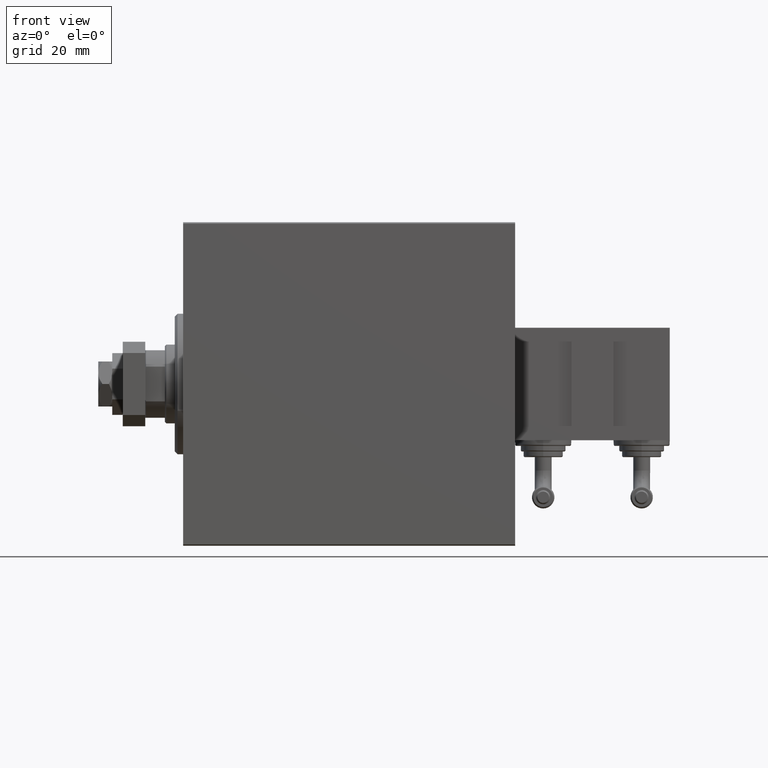
[diagram: clean part render]
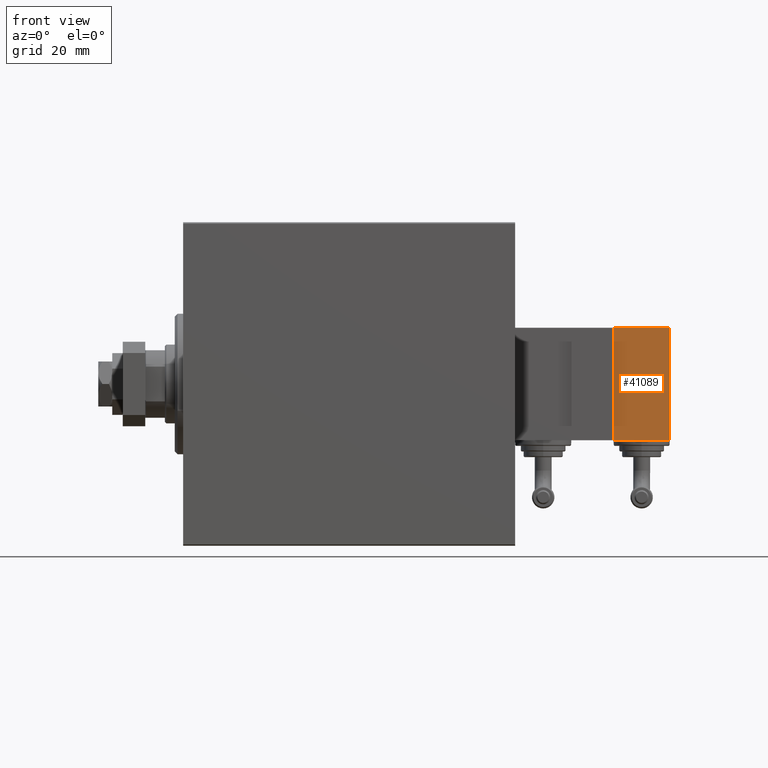
[diagram: same view with one face highlighted and labeled with its STEP entity id]
A machine part, front view. The second image highlights one B-rep face of the part: STEP entity #41089.
In plain terms, the highlighted planar face has unit normal (0, 1, 0).
Its self-contained STEP definition (entity closure, byte-faithful):
#718 = DIRECTION ( 'NONE',  ( 1.000000000000000000, 0.000000000000000000, 0.000000000000000000 ) ) ;
#1250 = ORIENTED_EDGE ( 'NONE', *, *, #27896, .T. ) ;
#2806 = ORIENTED_EDGE ( 'NONE', *, *, #20981, .T. ) ;
#4300 = AXIS2_PLACEMENT_3D ( 'NONE', #37587, #45057, #33719 ) ;
#4572 = CARTESIAN_POINT ( 'NONE',  ( 20.00000000000005329, -17.49999999999996092, 10.00000000000000000 ) ) ;
#7561 = CARTESIAN_POINT ( 'NONE',  ( -19.99999999999994316, -17.49999999999996092, 10.00000000000000000 ) ) ;
#8909 = DIRECTION ( 'NONE',  ( 0.000000000000000000, 0.000000000000000000, 1.000000000000000000 ) ) ;
#9086 = DIRECTION ( 'NONE',  ( -1.000000000000000000, -0.000000000000000000, -0.000000000000000000 ) ) ;
#9469 = CARTESIAN_POINT ( 'NONE',  ( -19.99999999999994316, -17.49999999999996092, -9.999999999999998224 ) ) ;
#18464 = PLANE ( 'NONE',  #4300 ) ;
#19218 = EDGE_CURVE ( 'NONE', #25239, #25198, #43485, .T. ) ;
#20300 = CARTESIAN_POINT ( 'NONE',  ( -19.99999999999994316, -17.49999999999996092, -9.999999999999998224 ) ) ;
#20516 = CARTESIAN_POINT ( 'NONE',  ( 20.00000000000005329, -17.49999999999996092, -9.999999999999998224 ) ) ;
#20944 = CARTESIAN_POINT ( 'NONE',  ( -19.99999999999994316, -17.49999999999996092, 10.00000000000000000 ) ) ;
#20981 = EDGE_CURVE ( 'NONE', #47299, #39922, #38635, .T. ) ;
#22957 = ORIENTED_EDGE ( 'NONE', *, *, #19218, .T. ) ;
#24550 = VECTOR ( 'NONE', #9086, 1000.000000000000000 ) ;
#25198 = VERTEX_POINT ( 'NONE', #4572 ) ;
#25209 = EDGE_CURVE ( 'NONE', #39922, #25239, #31927, .T. ) ;
#25239 = VERTEX_POINT ( 'NONE', #47150 ) ;
#25574 = LINE ( 'NONE', #20944, #24550 ) ;
#27763 = DIRECTION ( 'NONE',  ( -0.000000000000000000, -0.000000000000000000, -1.000000000000000000 ) ) ;
#27896 = EDGE_CURVE ( 'NONE', #25198, #47299, #25574, .T. ) ;
#31902 = VECTOR ( 'NONE', #718, 1000.000000000000000 ) ;
#31927 = LINE ( 'NONE', #20300, #31902 ) ;
#32691 = FACE_OUTER_BOUND ( 'NONE', #41393, .T. ) ;
#33719 = DIRECTION ( 'NONE',  ( 0.000000000000000000, -0.000000000000000000, 1.000000000000000000 ) ) ;
#37587 = CARTESIAN_POINT ( 'NONE',  ( 0.000000000000000000, -17.49999999999996092, 0.000000000000000000 ) ) ;
#38360 = VECTOR ( 'NONE', #27763, 1000.000000000000000 ) ;
#38635 = LINE ( 'NONE', #43507, #38360 ) ;
#38663 = ORIENTED_EDGE ( 'NONE', *, *, #25209, .T. ) ;
#39922 = VERTEX_POINT ( 'NONE', #9469 ) ;
#41089 = ADVANCED_FACE ( 'NONE', ( #32691 ), #18464, .F. ) ;
#41393 = EDGE_LOOP ( 'NONE', ( #22957, #1250, #2806, #38663 ) ) ;
#43485 = LINE ( 'NONE', #20516, #46520 ) ;
#43507 = CARTESIAN_POINT ( 'NONE',  ( -19.99999999999994316, -17.49999999999996092, -9.999999999999998224 ) ) ;
#45057 = DIRECTION ( 'NONE',  ( 0.000000000000000000, 1.000000000000000000, 0.000000000000000000 ) ) ;
#46520 = VECTOR ( 'NONE', #8909, 1000.000000000000000 ) ;
#47150 = CARTESIAN_POINT ( 'NONE',  ( 20.00000000000005329, -17.49999999999996092, -9.999999999999998224 ) ) ;
#47299 = VERTEX_POINT ( 'NONE', #7561 ) ;